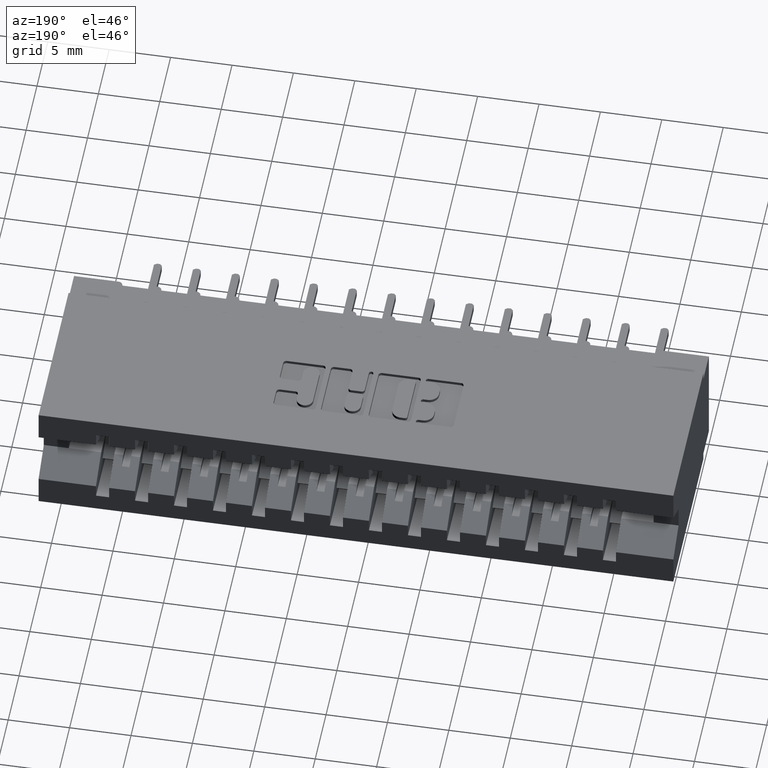
[diagram: clean part render]
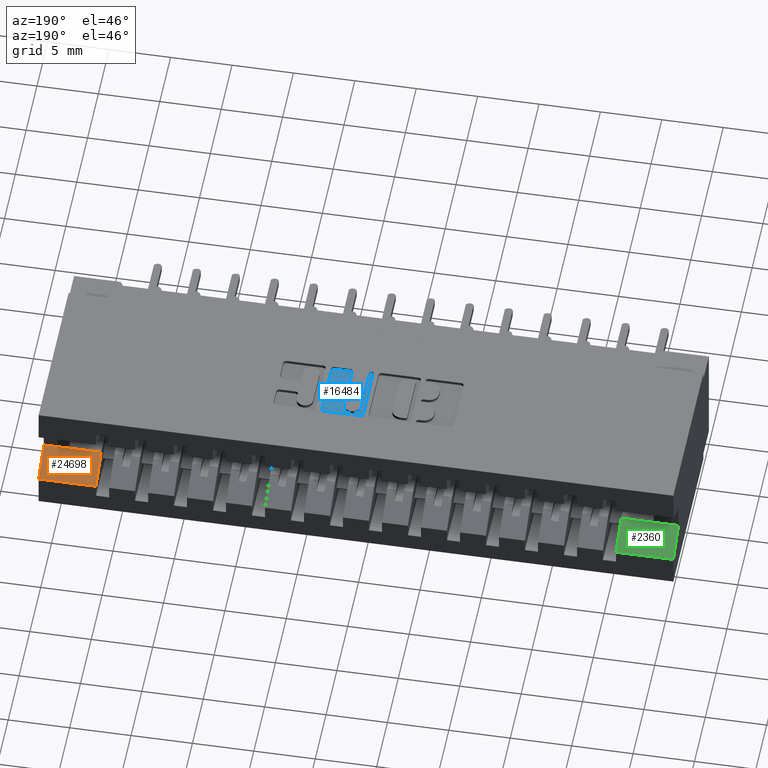
[diagram: same view with three faces highlighted in distinct colors, each labeled with its STEP entity id]
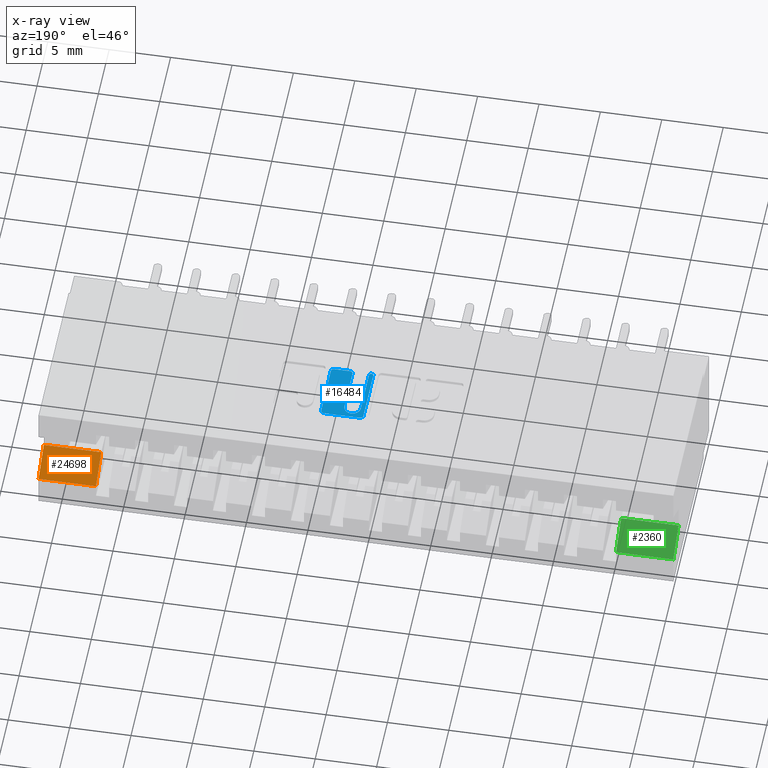
[diagram: x-ray of the same camera — body ghosted, the three highlighted faces saturated]
A machine part, auxiliary view with three faces highlighted in distinct colors.
The next image is the same camera in x-ray (body ghosted, the three faces saturated) — at least one of them is partly hidden behind the body in this view.
Their STEP definitions:

[orange] entity #24698 — the highlighted planar face has unit normal (0, 0.5194, 0.8545).
#681 = DIRECTION ( 'NONE',  ( -1.238924702507070723E-16, 0.8545023705661022317, -0.5194474936862353287 ) ) ;
#1194 = LINE ( 'NONE', #14393, #22645 ) ;
#2162 = EDGE_CURVE ( 'NONE', #3285, #4930, #17843, .T. ) ;
#3158 = DIRECTION ( 'NONE',  ( -1.000000000000000000, 0.0000000000000000000, 0.0000000000000000000 ) ) ;
#3169 = ORIENTED_EDGE ( 'NONE', *, *, #10150, .F. ) ;
#3285 = VERTEX_POINT ( 'NONE', #18539 ) ;
#3368 = EDGE_CURVE ( 'NONE', #3285, #10121, #19551, .T. ) ;
#3603 = FACE_OUTER_BOUND ( 'NONE', #11073, .T. ) ;
#4930 = VERTEX_POINT ( 'NONE', #11127 ) ;
#5783 = VECTOR ( 'NONE', #10141, 39.37007874015748143 ) ;
#7784 = CARTESIAN_POINT ( 'NONE',  ( 1.850999999999999757, 0.5499999999999999334, -0.2320000000000000118 ) ) ;
#7856 = CARTESIAN_POINT ( 'NONE',  ( 2.035000000000000142, 0.5499999999999999334, -0.2320000000000000395 ) ) ;
#8562 = ORIENTED_EDGE ( 'NONE', *, *, #18545, .F. ) ;
#8746 = CARTESIAN_POINT ( 'NONE',  ( 2.035000000000000142, 0.5499999999999999334, -0.2320000000000000395 ) ) ;
#9903 = CARTESIAN_POINT ( 'NONE',  ( 2.035000000000000142, 0.6449999999999999067, -0.2897500000000000075 ) ) ;
#9951 = EDGE_CURVE ( 'NONE', #4930, #13239, #20070, .T. ) ;
#10121 = VERTEX_POINT ( 'NONE', #20190 ) ;
#10141 = DIRECTION ( 'NONE',  ( -1.000000000000000000, 0.0000000000000000000, 0.0000000000000000000 ) ) ;
#10150 = EDGE_CURVE ( 'NONE', #10121, #21306, #16491, .T. ) ;
#10391 = ORIENTED_EDGE ( 'NONE', *, *, #3368, .F. ) ;
#11073 = EDGE_LOOP ( 'NONE', ( #8562, #3169, #10391, #20919, #21067 ) ) ;
#11127 = CARTESIAN_POINT ( 'NONE',  ( 2.035000000000000142, 0.6449999999999999067, -0.2897499999999999520 ) ) ;
#11487 = AXIS2_PLACEMENT_3D ( 'NONE', #15647, #15392, #15274 ) ;
#11579 = PLANE ( 'NONE',  #11487 ) ;
#13239 = VERTEX_POINT ( 'NONE', #16459 ) ;
#14393 = CARTESIAN_POINT ( 'NONE',  ( 1.850999999999999757, 0.5499999999999999334, -0.2320000000000000395 ) ) ;
#15274 = DIRECTION ( 'NONE',  ( 0.0000000000000000000, -0.8545023705661022317, 0.5194474936862353287 ) ) ;
#15392 = DIRECTION ( 'NONE',  ( 0.0000000000000000000, 0.5194474936862354397, 0.8545023705661023428 ) ) ;
#15647 = CARTESIAN_POINT ( 'NONE',  ( 2.035000000000000142, 0.5499999999999999334, -0.2320000000000000395 ) ) ;
#15807 = DIRECTION ( 'NONE',  ( 0.0000000000000000000, 0.8545023705661023428, -0.5194474936862353287 ) ) ;
#16459 = CARTESIAN_POINT ( 'NONE',  ( 1.850999999999999757, 0.6449999999999999067, -0.2897500000000000075 ) ) ;
#16491 = LINE ( 'NONE', #8746, #18756 ) ;
#17843 = LINE ( 'NONE', #23573, #22096 ) ;
#18076 = VECTOR ( 'NONE', #22993, 39.37007874015748143 ) ;
#18539 = CARTESIAN_POINT ( 'NONE',  ( 2.035000000000000142, 0.5499999999999999334, -0.2320000000000000395 ) ) ;
#18545 = EDGE_CURVE ( 'NONE', #21306, #13239, #1194, .T. ) ;
#18756 = VECTOR ( 'NONE', #3158, 39.37007874015748143 ) ;
#19551 = LINE ( 'NONE', #7856, #18076 ) ;
#20070 = LINE ( 'NONE', #9903, #5783 ) ;
#20190 = CARTESIAN_POINT ( 'NONE',  ( 1.955000000000000293, 0.5499999999999999334, -0.2320000000000000118 ) ) ;
#20919 = ORIENTED_EDGE ( 'NONE', *, *, #2162, .T. ) ;
#21067 = ORIENTED_EDGE ( 'NONE', *, *, #9951, .T. ) ;
#21306 = VERTEX_POINT ( 'NONE', #7784 ) ;
#22096 = VECTOR ( 'NONE', #15807, 39.37007874015748854 ) ;
#22645 = VECTOR ( 'NONE', #681, 39.37007874015748143 ) ;
#22993 = DIRECTION ( 'NONE',  ( -1.000000000000000000, 0.0000000000000000000, 0.0000000000000000000 ) ) ;
#23573 = CARTESIAN_POINT ( 'NONE',  ( 2.035000000000000142, 0.5499999999999999334, -0.2320000000000000395 ) ) ;
#24698 = ADVANCED_FACE ( 'NONE', ( #3603 ), #11579, .T. ) ;

[blue] entity #16484 — the highlighted planar face has unit normal (0, 0, 1).
#554 = DIRECTION ( 'NONE',  ( 0.0000000000000000000, 1.000000000000000000, -0.0000000000000000000 ) ) ;
#688 = ORIENTED_EDGE ( 'NONE', *, *, #23841, .F. ) ;
#733 = EDGE_CURVE ( 'NONE', #20234, #19300, #1211, .T. ) ;
#1044 = DIRECTION ( 'NONE',  ( 1.000000000000000000, 0.0000000000000000000, 0.0000000000000000000 ) ) ;
#1175 = CARTESIAN_POINT ( 'NONE',  ( 1.049646319917450388, 0.3891866393464887830, -0.01000000000000000021 ) ) ;
#1211 = LINE ( 'NONE', #11117, #1368 ) ;
#1217 = CARTESIAN_POINT ( 'NONE',  ( 1.026088711428331024, 0.4608410318342101575, -0.01000000000000000021 ) ) ;
#1303 = ORIENTED_EDGE ( 'NONE', *, *, #20809, .F. ) ;
#1332 = ORIENTED_EDGE ( 'NONE', *, *, #7270, .F. ) ;
#1368 = VECTOR ( 'NONE', #17225, 39.37007874015748143 ) ;
#1403 = VECTOR ( 'NONE', #22296, 39.37007874015748143 ) ;
#1494 = VERTEX_POINT ( 'NONE', #23659 ) ;
#1744 = DIRECTION ( 'NONE',  ( 1.000000000000000000, 0.0000000000000000000, 0.0000000000000000000 ) ) ;
#1770 = LINE ( 'NONE', #9134, #5868 ) ;
#1846 = ORIENTED_EDGE ( 'NONE', *, *, #24619, .F. ) ;
#1870 = EDGE_CURVE ( 'NONE', #1494, #24332, #14286, .T. ) ;
#1871 = VERTEX_POINT ( 'NONE', #1217 ) ;
#1906 = ORIENTED_EDGE ( 'NONE', *, *, #18967, .T. ) ;
#2220 = CARTESIAN_POINT ( 'NONE',  ( 1.102160155507785788, 0.2743432979619847001, -0.01000000000000000021 ) ) ;
#2523 = DIRECTION ( 'NONE',  ( -1.000000000000000000, -4.153954829891640784E-15, 0.0000000000000000000 ) ) ;
#2743 = AXIS2_PLACEMENT_3D ( 'NONE', #21746, #21863, #23899 ) ;
#3046 = VERTEX_POINT ( 'NONE', #6469 ) ;
#3140 = CARTESIAN_POINT ( 'NONE',  ( 1.092344485303984758, 0.0000000000000000000, -0.01000000000000000021 ) ) ;
#3174 = AXIS2_PLACEMENT_3D ( 'NONE', #9537, #6344, #12417 ) ;
#3615 = CARTESIAN_POINT ( 'NONE',  ( 1.032959680570987082, 0.2812142671046480302, -0.01000000000000000021 ) ) ;
#3755 = VERTEX_POINT ( 'NONE', #16665 ) ;
#4137 = LINE ( 'NONE', #12234, #14580 ) ;
#4210 = CARTESIAN_POINT ( 'NONE',  ( 1.026088711428331024, 0.2812142671046480302, -0.01000000000000000021 ) ) ;
#4356 = AXIS2_PLACEMENT_3D ( 'NONE', #9312, #24310, #24433 ) ;
#4359 = EDGE_CURVE ( 'NONE', #11619, #7277, #6352, .T. ) ;
#4379 = ORIENTED_EDGE ( 'NONE', *, *, #733, .F. ) ;
#4466 = PLANE ( 'NONE',  #2743 ) ;
#4565 = CARTESIAN_POINT ( 'NONE',  ( 1.161544960240806779, 0.4608410318342010537, -0.01000000000000000021 ) ) ;
#4578 = EDGE_CURVE ( 'NONE', #14434, #1871, #1770, .T. ) ;
#4719 = FACE_BOUND ( 'NONE', #15115, .T. ) ;
#4803 = CIRCLE ( 'NONE', #23880, 0.009815670203795690690 ) ;
#5475 = EDGE_CURVE ( 'NONE', #18714, #3755, #24703, .T. ) ;
#5790 = ORIENTED_EDGE ( 'NONE', *, *, #12423, .T. ) ;
#5868 = VECTOR ( 'NONE', #20698, 39.37007874015748143 ) ;
#6151 = CARTESIAN_POINT ( 'NONE',  ( 1.092344485303982315, 0.4301670498449322588, -0.01000000000000000021 ) ) ;
#6227 = CARTESIAN_POINT ( 'NONE',  ( -1.575889869590912786E-15, 0.3793709691426810915, -0.01000000000000000021 ) ) ;
#6277 = EDGE_CURVE ( 'NONE', #11619, #17316, #10966, .T. ) ;
#6344 = DIRECTION ( 'NONE',  ( -0.0000000000000000000, 0.0000000000000000000, 1.000000000000000000 ) ) ;
#6352 = LINE ( 'NONE', #6227, #8815 ) ;
#6379 = CARTESIAN_POINT ( 'NONE',  ( 1.049646319917450388, 0.3656290308573487136, -0.01000000000000000021 ) ) ;
#6469 = CARTESIAN_POINT ( 'NONE',  ( 1.035904381632127391, 0.4706567020380066912, -0.01000000000000000021 ) ) ;
#6479 = ORIENTED_EDGE ( 'NONE', *, *, #25129, .F. ) ;
#7079 = CARTESIAN_POINT ( 'NONE',  ( 1.082528815100185948, 0.3891866393464820106, -0.01000000000000000021 ) ) ;
#7082 = CARTESIAN_POINT ( 'NONE',  ( 1.049646319917450388, 0.3793709691426854214, -0.01000000000000000021 ) ) ;
#7270 = EDGE_CURVE ( 'NONE', #9585, #13813, #10928, .T. ) ;
#7277 = VERTEX_POINT ( 'NONE', #7082 ) ;
#7334 = AXIS2_PLACEMENT_3D ( 'NONE', #7079, #17241, #1744 ) ;
#7402 = EDGE_CURVE ( 'NONE', #24394, #8755, #17856, .T. ) ;
#7456 = DIRECTION ( 'NONE',  ( 1.000000000000000000, 0.0000000000000000000, 0.0000000000000000000 ) ) ;
#7477 = ORIENTED_EDGE ( 'NONE', *, *, #21789, .T. ) ;
#7599 = CARTESIAN_POINT ( 'NONE',  ( 1.161544960240806779, 0.2841589681657809008, -0.01000000000000000021 ) ) ;
#7720 = CARTESIAN_POINT ( 'NONE',  ( 1.151729290037013964, 0.4706567020380066912, -0.01000000000000000021 ) ) ;
#7923 = CARTESIAN_POINT ( 'NONE',  ( 1.092344485303984758, 0.3558133606535435201, -0.01000000000000000021 ) ) ;
#8124 = DIRECTION ( 'NONE',  ( 0.0000000000000000000, -1.000000000000000000, 0.0000000000000000000 ) ) ;
#8440 = CARTESIAN_POINT ( 'NONE',  ( 1.092344485303984758, 0.2841589681657878952, -0.01000000000000000021 ) ) ;
#8755 = VERTEX_POINT ( 'NONE', #13594 ) ;
#8815 = VECTOR ( 'NONE', #2523, 39.37007874015748143 ) ;
#8971 = CARTESIAN_POINT ( 'NONE',  ( 1.049646319917450388, 0.3558133606535456295, -0.01000000000000000021 ) ) ;
#9007 = VECTOR ( 'NONE', #8124, 39.37007874015748143 ) ;
#9134 = CARTESIAN_POINT ( 'NONE',  ( 1.026088711428331024, 0.0000000000000000000, -0.01000000000000000021 ) ) ;
#9312 = CARTESIAN_POINT ( 'NONE',  ( 1.151729290037010633, 0.2841589681657809008, -0.01000000000000000021 ) ) ;
#9537 = CARTESIAN_POINT ( 'NONE',  ( 1.102160155507788009, 0.2841589681657878952, -0.01000000000000000021 ) ) ;
#9585 = VERTEX_POINT ( 'NONE', #6379 ) ;
#9777 = LINE ( 'NONE', #21842, #9007 ) ;
#9794 = AXIS2_PLACEMENT_3D ( 'NONE', #3615, #11216, #20891 ) ;
#10523 = AXIS2_PLACEMENT_3D ( 'NONE', #15125, #13462, #11427 ) ;
#10908 = DIRECTION ( 'NONE',  ( 1.000000000000000000, 0.0000000000000000000, 0.0000000000000000000 ) ) ;
#10928 = CIRCLE ( 'NONE', #11755, 0.009815670203803203778 ) ;
#10966 = CIRCLE ( 'NONE', #7334, 0.009815670203796374171 ) ;
#11082 = AXIS2_PLACEMENT_3D ( 'NONE', #1175, #16655, #1044 ) ;
#11117 = CARTESIAN_POINT ( 'NONE',  ( 1.161544960240806779, 0.0000000000000000000, -0.01000000000000000021 ) ) ;
#11216 = DIRECTION ( 'NONE',  ( -0.0000000000000000000, 0.0000000000000000000, 1.000000000000000000 ) ) ;
#11304 = CARTESIAN_POINT ( 'NONE',  ( 1.039830649713646915, 0.2812142671046480302, -0.01000000000000000021 ) ) ;
#11425 = LINE ( 'NONE', #15958, #19652 ) ;
#11427 = DIRECTION ( 'NONE',  ( 1.000000000000000000, 0.0000000000000000000, 0.0000000000000000000 ) ) ;
#11619 = VERTEX_POINT ( 'NONE', #19452 ) ;
#11755 = AXIS2_PLACEMENT_3D ( 'NONE', #8971, #12790, #16717 ) ;
#12234 = CARTESIAN_POINT ( 'NONE',  ( 1.039830649713646915, 0.0000000000000000000, -0.01000000000000000021 ) ) ;
#12267 = CARTESIAN_POINT ( 'NONE',  ( 0.0000000000000000000, 0.2743432979619847001, -0.01000000000000000021 ) ) ;
#12326 = EDGE_CURVE ( 'NONE', #3046, #1871, #20862, .T. ) ;
#12417 = DIRECTION ( 'NONE',  ( 1.000000000000000000, 0.0000000000000000000, 0.0000000000000000000 ) ) ;
#12423 = EDGE_CURVE ( 'NONE', #16975, #8755, #4137, .T. ) ;
#12426 = ORIENTED_EDGE ( 'NONE', *, *, #12326, .T. ) ;
#12790 = DIRECTION ( 'NONE',  ( -0.0000000000000000000, 0.0000000000000000000, 1.000000000000000000 ) ) ;
#13274 = ORIENTED_EDGE ( 'NONE', *, *, #7402, .F. ) ;
#13332 = LINE ( 'NONE', #24916, #24846 ) ;
#13462 = DIRECTION ( 'NONE',  ( -0.0000000000000000000, 0.0000000000000000000, 1.000000000000000000 ) ) ;
#13572 = ORIENTED_EDGE ( 'NONE', *, *, #16184, .T. ) ;
#13594 = CARTESIAN_POINT ( 'NONE',  ( 1.039830649713646915, 0.4301670624473479809, -0.01000000000000000021 ) ) ;
#13756 = VERTEX_POINT ( 'NONE', #8440 ) ;
#13813 = VERTEX_POINT ( 'NONE', #16425 ) ;
#14286 = LINE ( 'NONE', #12267, #1403 ) ;
#14434 = VERTEX_POINT ( 'NONE', #4210 ) ;
#14580 = VECTOR ( 'NONE', #554, 39.37007874015748143 ) ;
#15115 = EDGE_LOOP ( 'NONE', ( #13274, #7477, #23551, #25046, #1846, #5790 ) ) ;
#15125 = CARTESIAN_POINT ( 'NONE',  ( 1.066087567508811729, 0.4301670498449322588, -0.01000000000000000021 ) ) ;
#15253 = CARTESIAN_POINT ( 'NONE',  ( 1.151729290037011744, 0.4608410318342104350, -0.01000000000000000021 ) ) ;
#15299 = ORIENTED_EDGE ( 'NONE', *, *, #5475, .F. ) ;
#15303 = CIRCLE ( 'NONE', #4356, 0.009815670203796237128 ) ;
#15958 = CARTESIAN_POINT ( 'NONE',  ( -1.290985506876488798E-14, 0.3656290308573115766, -0.01000000000000000021 ) ) ;
#16034 = ORIENTED_EDGE ( 'NONE', *, *, #18955, .T. ) ;
#16184 = EDGE_CURVE ( 'NONE', #1494, #19300, #15303, .T. ) ;
#16203 = CARTESIAN_POINT ( 'NONE',  ( 1.039830649713646915, 0.3891866393464887830, -0.01000000000000000021 ) ) ;
#16421 = CARTESIAN_POINT ( 'NONE',  ( 1.092344485303982315, 0.3891866393464820106, -0.01000000000000000021 ) ) ;
#16425 = CARTESIAN_POINT ( 'NONE',  ( 1.039830649713646915, 0.3558133606535456295, -0.01000000000000000021 ) ) ;
#16484 = ADVANCED_FACE ( 'NONE', ( #4719, #24507 ), #4466, .T. ) ;
#16655 = DIRECTION ( 'NONE',  ( -0.0000000000000000000, 0.0000000000000000000, 1.000000000000000000 ) ) ;
#16665 = CARTESIAN_POINT ( 'NONE',  ( 1.082528815100188169, 0.3656290308573498238, -0.01000000000000000021 ) ) ;
#16717 = DIRECTION ( 'NONE',  ( 1.000000000000000000, 0.0000000000000000000, 0.0000000000000000000 ) ) ;
#16756 = CIRCLE ( 'NONE', #11082, 0.009815670203803340821 ) ;
#16903 = DIRECTION ( 'NONE',  ( 1.000000000000000000, 0.0000000000000000000, 0.0000000000000000000 ) ) ;
#16975 = VERTEX_POINT ( 'NONE', #16203 ) ;
#17225 = DIRECTION ( 'NONE',  ( 0.0000000000000000000, -1.000000000000000000, 0.0000000000000000000 ) ) ;
#17241 = DIRECTION ( 'NONE',  ( -0.0000000000000000000, 0.0000000000000000000, 1.000000000000000000 ) ) ;
#17316 = VERTEX_POINT ( 'NONE', #16421 ) ;
#17856 = CIRCLE ( 'NONE', #10523, 0.02625691779516779734 ) ;
#18196 = AXIS2_PLACEMENT_3D ( 'NONE', #25060, #23140, #21233 ) ;
#18504 = DIRECTION ( 'NONE',  ( 0.0000000000000000000, -1.000000000000000000, 0.0000000000000000000 ) ) ;
#18714 = VERTEX_POINT ( 'NONE', #7923 ) ;
#18751 = ORIENTED_EDGE ( 'NONE', *, *, #23372, .F. ) ;
#18784 = EDGE_LOOP ( 'NONE', ( #18751, #12426, #20700, #23757, #1303, #1332, #6479, #15299, #688, #1906, #22166, #13572, #4379, #16034 ) ) ;
#18934 = VERTEX_POINT ( 'NONE', #11304 ) ;
#18955 = EDGE_CURVE ( 'NONE', #20234, #20460, #4803, .T. ) ;
#18967 = EDGE_CURVE ( 'NONE', #13756, #24332, #23470, .T. ) ;
#19076 = DIRECTION ( 'NONE',  ( -1.000000000000000000, -3.530861605407645268E-14, 0.0000000000000000000 ) ) ;
#19275 = DIRECTION ( 'NONE',  ( -0.0000000000000000000, 0.0000000000000000000, 1.000000000000000000 ) ) ;
#19300 = VERTEX_POINT ( 'NONE', #7599 ) ;
#19452 = CARTESIAN_POINT ( 'NONE',  ( 1.082528815100185948, 0.3793709691426855879, -0.01000000000000000021 ) ) ;
#19652 = VECTOR ( 'NONE', #19076, 39.37007874015748143 ) ;
#20234 = VERTEX_POINT ( 'NONE', #4565 ) ;
#20405 = CARTESIAN_POINT ( 'NONE',  ( 1.039830649713646915, 0.0000000000000000000, -0.01000000000000000021 ) ) ;
#20460 = VERTEX_POINT ( 'NONE', #7720 ) ;
#20554 = LINE ( 'NONE', #3140, #21996 ) ;
#20698 = DIRECTION ( 'NONE',  ( 0.0000000000000000000, 1.000000000000000000, -0.0000000000000000000 ) ) ;
#20700 = ORIENTED_EDGE ( 'NONE', *, *, #4578, .F. ) ;
#20809 = EDGE_CURVE ( 'NONE', #13813, #18934, #24097, .T. ) ;
#20862 = CIRCLE ( 'NONE', #23145, 0.009815670203796511215 ) ;
#20891 = DIRECTION ( 'NONE',  ( 1.000000000000000000, 0.0000000000000000000, 0.0000000000000000000 ) ) ;
#21225 = EDGE_CURVE ( 'NONE', #14434, #18934, #23606, .T. ) ;
#21233 = DIRECTION ( 'NONE',  ( 1.000000000000000000, 0.0000000000000000000, 0.0000000000000000000 ) ) ;
#21746 = CARTESIAN_POINT ( 'NONE',  ( 0.0000000000000000000, 0.0000000000000000000, -0.01000000000000000021 ) ) ;
#21789 = EDGE_CURVE ( 'NONE', #24394, #17316, #9777, .T. ) ;
#21842 = CARTESIAN_POINT ( 'NONE',  ( 1.092344485303982315, 0.0000000000000000000, -0.01000000000000000021 ) ) ;
#21863 = DIRECTION ( 'NONE',  ( -0.0000000000000000000, 0.0000000000000000000, 1.000000000000000000 ) ) ;
#21996 = VECTOR ( 'NONE', #23471, 39.37007874015748143 ) ;
#22166 = ORIENTED_EDGE ( 'NONE', *, *, #1870, .F. ) ;
#22296 = DIRECTION ( 'NONE',  ( -1.000000000000000000, 0.0000000000000000000, 0.0000000000000000000 ) ) ;
#22342 = VECTOR ( 'NONE', #18504, 39.37007874015748143 ) ;
#23012 = DIRECTION ( 'NONE',  ( -0.0000000000000000000, 0.0000000000000000000, 1.000000000000000000 ) ) ;
#23080 = CARTESIAN_POINT ( 'NONE',  ( 1.035904381632127391, 0.4608410318342101575, -0.01000000000000000021 ) ) ;
#23140 = DIRECTION ( 'NONE',  ( -0.0000000000000000000, 0.0000000000000000000, 1.000000000000000000 ) ) ;
#23145 = AXIS2_PLACEMENT_3D ( 'NONE', #23080, #19275, #7456 ) ;
#23372 = EDGE_CURVE ( 'NONE', #3046, #20460, #13332, .T. ) ;
#23470 = CIRCLE ( 'NONE', #3174, 0.009815670203803203778 ) ;
#23471 = DIRECTION ( 'NONE',  ( 0.0000000000000000000, 1.000000000000000000, -0.0000000000000000000 ) ) ;
#23551 = ORIENTED_EDGE ( 'NONE', *, *, #6277, .F. ) ;
#23606 = CIRCLE ( 'NONE', #9794, 0.006870969142657995000 ) ;
#23659 = CARTESIAN_POINT ( 'NONE',  ( 1.151729290037010633, 0.2743432979619847001, -0.01000000000000000021 ) ) ;
#23757 = ORIENTED_EDGE ( 'NONE', *, *, #21225, .T. ) ;
#23841 = EDGE_CURVE ( 'NONE', #13756, #18714, #20554, .T. ) ;
#23880 = AXIS2_PLACEMENT_3D ( 'NONE', #15253, #23012, #16903 ) ;
#23899 = DIRECTION ( 'NONE',  ( 1.000000000000000000, 0.0000000000000000000, 0.0000000000000000000 ) ) ;
#24097 = LINE ( 'NONE', #20405, #22342 ) ;
#24310 = DIRECTION ( 'NONE',  ( -0.0000000000000000000, 0.0000000000000000000, 1.000000000000000000 ) ) ;
#24332 = VERTEX_POINT ( 'NONE', #2220 ) ;
#24394 = VERTEX_POINT ( 'NONE', #6151 ) ;
#24433 = DIRECTION ( 'NONE',  ( 1.000000000000000000, 0.0000000000000000000, 0.0000000000000000000 ) ) ;
#24507 = FACE_OUTER_BOUND ( 'NONE', #18784, .T. ) ;
#24619 = EDGE_CURVE ( 'NONE', #16975, #7277, #16756, .T. ) ;
#24703 = CIRCLE ( 'NONE', #18196, 0.009815670203796920609 ) ;
#24846 = VECTOR ( 'NONE', #10908, 39.37007874015748143 ) ;
#24916 = CARTESIAN_POINT ( 'NONE',  ( 0.0000000000000000000, 0.4706567020380066912, -0.01000000000000000021 ) ) ;
#25046 = ORIENTED_EDGE ( 'NONE', *, *, #4359, .T. ) ;
#25060 = CARTESIAN_POINT ( 'NONE',  ( 1.082528815100187725, 0.3558133606535528459, -0.01000000000000000021 ) ) ;
#25129 = EDGE_CURVE ( 'NONE', #3755, #9585, #11425, .T. ) ;

[green] entity #2360 — the highlighted planar face has unit normal (0, 0.5194, 0.8545).
#274 = CARTESIAN_POINT ( 'NONE',  ( 0.0000000000000000000, 0.5499999999999999334, -0.2320000000000000395 ) ) ;
#350 = VECTOR ( 'NONE', #13968, 39.37007874015748143 ) ;
#1700 = CARTESIAN_POINT ( 'NONE',  ( 2.035000000000000142, 0.5499999999999999334, -0.2320000000000000395 ) ) ;
#2257 = AXIS2_PLACEMENT_3D ( 'NONE', #1700, #24576, #20630 ) ;
#2360 = ADVANCED_FACE ( 'NONE', ( #22790 ), #5260, .T. ) ;
#2427 = CARTESIAN_POINT ( 'NONE',  ( 0.1839999999999996638, 0.5499999999999999334, -0.2320000000000000118 ) ) ;
#2569 = EDGE_CURVE ( 'NONE', #18943, #9178, #19604, .T. ) ;
#3550 = VECTOR ( 'NONE', #6614, 39.37007874015748143 ) ;
#4083 = EDGE_CURVE ( 'NONE', #16489, #7993, #22356, .T. ) ;
#4739 = EDGE_LOOP ( 'NONE', ( #9591, #9406, #7308, #17395, #15232 ) ) ;
#5260 = PLANE ( 'NONE',  #2257 ) ;
#6232 = LINE ( 'NONE', #6356, #350 ) ;
#6356 = CARTESIAN_POINT ( 'NONE',  ( 2.035000000000000142, 0.6449999999999999067, -0.2897500000000000075 ) ) ;
#6614 = DIRECTION ( 'NONE',  ( -1.238924702507070723E-16, 0.8545023705661022317, -0.5194474936862353287 ) ) ;
#6813 = EDGE_CURVE ( 'NONE', #21037, #18943, #9583, .T. ) ;
#7308 = ORIENTED_EDGE ( 'NONE', *, *, #18161, .T. ) ;
#7514 = CARTESIAN_POINT ( 'NONE',  ( 0.0000000000000000000, 0.5499999999999999334, -0.2320000000000000395 ) ) ;
#7977 = CARTESIAN_POINT ( 'NONE',  ( 0.0000000000000000000, 0.6449999999999999067, -0.2897500000000000075 ) ) ;
#7993 = VERTEX_POINT ( 'NONE', #24061 ) ;
#8144 = VECTOR ( 'NONE', #10061, 39.37007874015748143 ) ;
#8767 = CARTESIAN_POINT ( 'NONE',  ( 0.1839999999999997193, 0.5499999999999997113, -0.2319999999999999563 ) ) ;
#9178 = VERTEX_POINT ( 'NONE', #7977 ) ;
#9406 = ORIENTED_EDGE ( 'NONE', *, *, #4083, .T. ) ;
#9583 = LINE ( 'NONE', #9815, #8144 ) ;
#9591 = ORIENTED_EDGE ( 'NONE', *, *, #21875, .F. ) ;
#9815 = CARTESIAN_POINT ( 'NONE',  ( 2.035000000000000142, 0.5499999999999999334, -0.2320000000000000395 ) ) ;
#9836 = CARTESIAN_POINT ( 'NONE',  ( 0.07999999999999969635, 0.5499999999999999334, -0.2320000000000000395 ) ) ;
#10061 = DIRECTION ( 'NONE',  ( -1.000000000000000000, 0.0000000000000000000, 0.0000000000000000000 ) ) ;
#10512 = DIRECTION ( 'NONE',  ( -1.000000000000000000, 0.0000000000000000000, 0.0000000000000000000 ) ) ;
#10780 = VECTOR ( 'NONE', #17443, 39.37007874015748854 ) ;
#13968 = DIRECTION ( 'NONE',  ( -1.000000000000000000, 0.0000000000000000000, 0.0000000000000000000 ) ) ;
#14449 = LINE ( 'NONE', #16610, #22376 ) ;
#15232 = ORIENTED_EDGE ( 'NONE', *, *, #6813, .F. ) ;
#16489 = VERTEX_POINT ( 'NONE', #2427 ) ;
#16610 = CARTESIAN_POINT ( 'NONE',  ( 2.035000000000000142, 0.5499999999999999334, -0.2320000000000000395 ) ) ;
#17395 = ORIENTED_EDGE ( 'NONE', *, *, #2569, .F. ) ;
#17443 = DIRECTION ( 'NONE',  ( 0.0000000000000000000, 0.8545023705661023428, -0.5194474936862353287 ) ) ;
#18161 = EDGE_CURVE ( 'NONE', #7993, #9178, #6232, .T. ) ;
#18943 = VERTEX_POINT ( 'NONE', #7514 ) ;
#19604 = LINE ( 'NONE', #274, #10780 ) ;
#20630 = DIRECTION ( 'NONE',  ( 0.0000000000000000000, -0.8545023705661022317, 0.5194474936862353287 ) ) ;
#21037 = VERTEX_POINT ( 'NONE', #9836 ) ;
#21875 = EDGE_CURVE ( 'NONE', #16489, #21037, #14449, .T. ) ;
#22356 = LINE ( 'NONE', #8767, #3550 ) ;
#22376 = VECTOR ( 'NONE', #10512, 39.37007874015748143 ) ;
#22790 = FACE_OUTER_BOUND ( 'NONE', #4739, .T. ) ;
#24061 = CARTESIAN_POINT ( 'NONE',  ( 0.1839999999999996638, 0.6449999999999999067, -0.2897500000000000075 ) ) ;
#24576 = DIRECTION ( 'NONE',  ( 0.0000000000000000000, 0.5194474936862354397, 0.8545023705661023428 ) ) ;